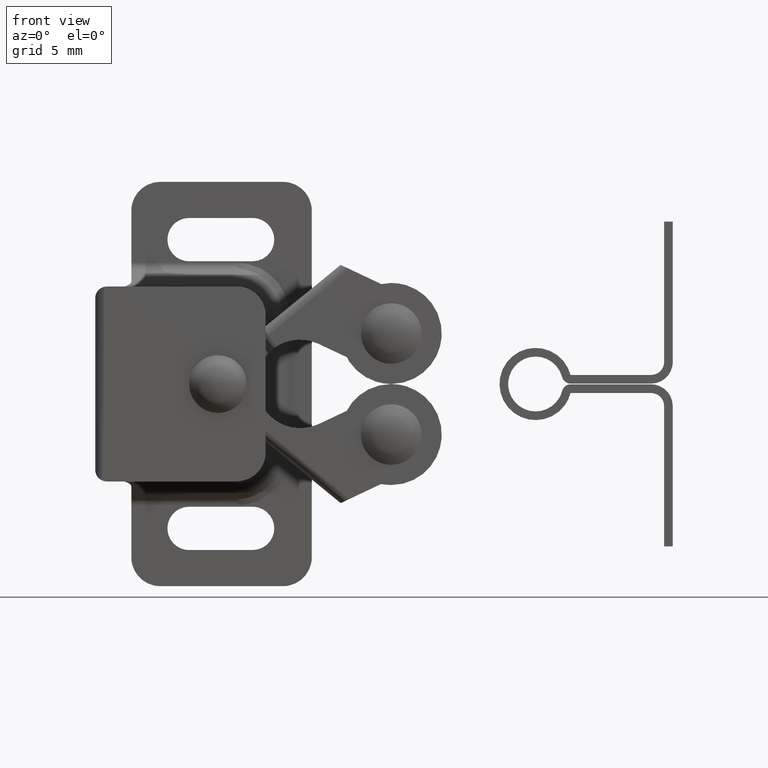
[diagram: clean part render]
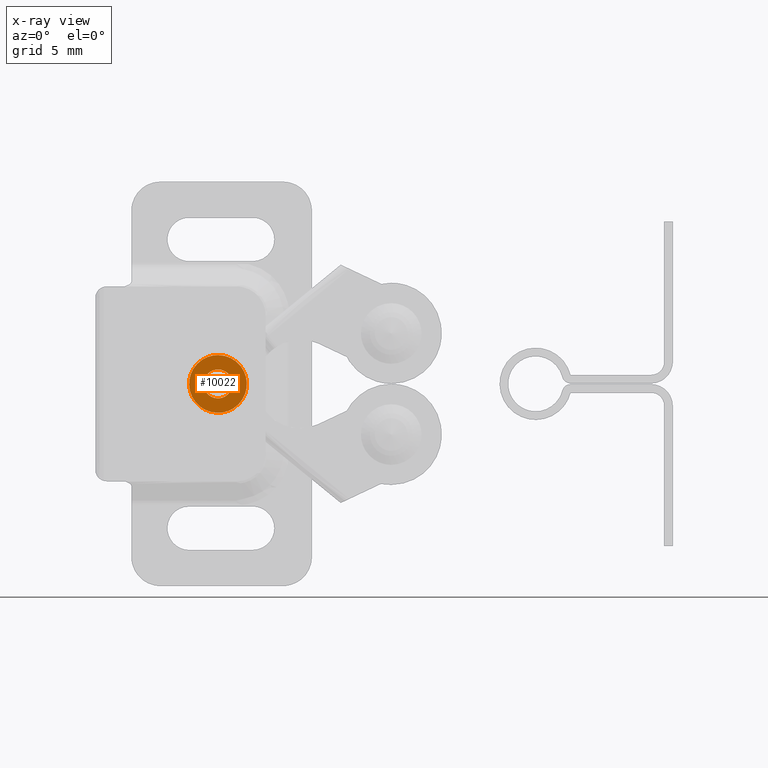
[diagram: x-ray — body ghosted, one internal face saturated and labeled with its STEP entity id]
A machine part, front view, then the same camera in x-ray: the body is ghosted and one INTERNAL B-rep face — a face not visible from any outside direction — is saturated and labeled: STEP entity #10022.
In plain terms, the highlighted face is a freeform B-spline surface patch.
Its self-contained STEP definition (entity closure, byte-faithful):
#9603=CARTESIAN_POINT('',(0.793005526357984,-12.499995999999999,-9.881965765295188));
#9604=VERTEX_POINT('',#9603);
#9605=CARTESIAN_POINT('',(-0.200003999999993,-12.499995999999999,-11.000000000000020));
#9606=VERTEX_POINT('',#9605);
#9607=CARTESIAN_POINT('',(0.793005526357984,-12.499995999999998,-9.881965765295188));
#9608=CARTESIAN_POINT('',(0.799996000000031,-12.499995999999998,-9.940775880299531));
#9609=CARTESIAN_POINT('',(0.799996000000031,-12.499995999999999,-10.0));
#9610=CARTESIAN_POINT('',(0.799996000000031,-12.499995999999999,-11.000000000000023));
#9611=CARTESIAN_POINT('',(-0.200003999999993,-12.499995999999999,-11.000000000000020));
#9619=(BOUNDED_CURVE()B_SPLINE_CURVE(2,(#9607,#9608,#9609,#9610,#9611),.UNSPECIFIED.,.F.,.U.)B_SPLINE_CURVE_WITH_KNOTS((3,2,3),(0.229562473499289,0.250000000000000,0.500000000000000),.UNSPECIFIED.)CURVE()GEOMETRIC_REPRESENTATION_ITEM()RATIONAL_B_SPLINE_CURVE((0.956026754155829,0.976055948314486,1.0,0.707106781186548,1.0))REPRESENTATION_ITEM(''));
#9620=EDGE_CURVE('',#9604,#9606,#9619,.T.);
#9622=CARTESIAN_POINT('',(-1.198138798414372,-12.499995999999999,-10.061048539657650));
#9623=VERTEX_POINT('',#9622);
#9624=CARTESIAN_POINT('',(-0.200003999999993,-12.499995999999999,-11.000000000000020));
#9625=CARTESIAN_POINT('',(-1.140710066673824,-12.499996000000001,-11.000000000000021));
#9626=CARTESIAN_POINT('',(-1.198138798414371,-12.499996000000001,-10.061048539657648));
#9634=(BOUNDED_CURVE()B_SPLINE_CURVE(2,(#9624,#9625,#9626),.UNSPECIFIED.,.F.,.U.)B_SPLINE_CURVE_WITH_KNOTS((3,3),(0.500000000000000,0.739332962199514),.UNSPECIFIED.)CURVE()GEOMETRIC_REPRESENTATION_ITEM()RATIONAL_B_SPLINE_CURVE((1.0,0.719603993332904,0.976072041582215))REPRESENTATION_ITEM(''));
#9635=EDGE_CURVE('',#9606,#9623,#9634,.T.);
#9702=CARTESIAN_POINT('',(-0.200003999999993,-12.499995999999999,-8.999999999999977));
#9703=VERTEX_POINT('',#9702);
#9704=CARTESIAN_POINT('',(-0.200003999999993,-12.499995999999999,-8.999999999999977));
#9705=CARTESIAN_POINT('',(0.688170525864838,-12.499995999999999,-8.999999999999977));
#9706=CARTESIAN_POINT('',(0.793005526357984,-12.499995999999996,-9.881965765295188));
#9714=(BOUNDED_CURVE()B_SPLINE_CURVE(2,(#9704,#9705,#9706),.UNSPECIFIED.,.F.,.U.)B_SPLINE_CURVE_WITH_KNOTS((3,3),(0.0,0.229562473499289),.UNSPECIFIED.)CURVE()GEOMETRIC_REPRESENTATION_ITEM()RATIONAL_B_SPLINE_CURVE((1.0,0.731050832872062,0.956026754155829))REPRESENTATION_ITEM(''));
#9715=EDGE_CURVE('',#9703,#9604,#9714,.T.);
#9749=CARTESIAN_POINT('',(-1.198138798414371,-12.499996000000001,-10.061048539657648));
#9750=CARTESIAN_POINT('',(-1.200004000000017,-12.499996000000003,-10.030552763421724));
#9751=CARTESIAN_POINT('',(-1.200004000000017,-12.499995999999999,-10.0));
#9752=CARTESIAN_POINT('',(-1.200004000000017,-12.499995999999999,-8.999999999999977));
#9753=CARTESIAN_POINT('',(-0.200003999999993,-12.499995999999999,-8.999999999999977));
#9761=(BOUNDED_CURVE()B_SPLINE_CURVE(2,(#9749,#9750,#9751,#9752,#9753),.UNSPECIFIED.,.F.,.U.)B_SPLINE_CURVE_WITH_KNOTS((3,2,3),(0.739332962199515,0.750000000000000,1.0),.UNSPECIFIED.)CURVE()GEOMETRIC_REPRESENTATION_ITEM()RATIONAL_B_SPLINE_CURVE((0.976072041582216,0.987502787853645,1.0,0.707106781186548,1.0))REPRESENTATION_ITEM(''));
#9762=EDGE_CURVE('',#9623,#9703,#9761,.T.);
#9975=CARTESIAN_POINT('',(-2.399804104894552,-12.499995999999999,-7.800200007752776));
#9976=CARTESIAN_POINT('',(-2.399804104894552,-12.499995999999999,-12.199800099535590));
#9977=CARTESIAN_POINT('',(1.999796104894565,-12.499995999999999,-7.800200007752776));
#9978=CARTESIAN_POINT('',(1.999796104894565,-12.499995999999999,-12.199800099535590));
#9979=B_SPLINE_SURFACE_WITH_KNOTS('',1,1,((#9975,#9977),(#9976,#9978)),.UNSPECIFIED.,.F.,.F.,.U.,(2,2),(2,2),(0.0,4.399600091782808),(0.0,4.399600209789116),.UNSPECIFIED.);
#9980=CARTESIAN_POINT('',(-0.200003999999993,-12.499995999999999,-8.0));
#9981=VERTEX_POINT('',#9980);
#9982=CARTESIAN_POINT('',(-0.200003999999993,-12.499995999999999,-12.0));
#9983=VERTEX_POINT('',#9982);
#9984=CARTESIAN_POINT('',(-0.200003999999993,-12.499995999999999,-8.0));
#9985=CARTESIAN_POINT('',(1.799996000000007,-12.499995999999999,-8.0));
#9986=CARTESIAN_POINT('',(1.799996000000007,-12.499995999999999,-10.0));
#9987=CARTESIAN_POINT('',(1.799996000000007,-12.499995999999999,-12.0));
#9988=CARTESIAN_POINT('',(-0.200003999999993,-12.499995999999999,-12.0));
#9996=(BOUNDED_CURVE()B_SPLINE_CURVE(2,(#9984,#9985,#9986,#9987,#9988),.UNSPECIFIED.,.F.,.U.)B_SPLINE_CURVE_WITH_KNOTS((3,2,3),(0.0,0.250000000000000,0.500000000000000),.UNSPECIFIED.)CURVE()GEOMETRIC_REPRESENTATION_ITEM()RATIONAL_B_SPLINE_CURVE((1.0,0.707106781186548,1.0,0.707106781186548,1.0))REPRESENTATION_ITEM(''));
#9997=EDGE_CURVE('',#9981,#9983,#9996,.T.);
#9998=ORIENTED_EDGE('',*,*,#9997,.T.);
#9999=CARTESIAN_POINT('',(-0.200003999999993,-12.499995999999999,-12.0));
#10000=CARTESIAN_POINT('',(-2.200003999999994,-12.499995999999999,-12.0));
#10001=CARTESIAN_POINT('',(-2.200003999999993,-12.499995999999999,-10.0));
#10002=CARTESIAN_POINT('',(-2.200003999999994,-12.499995999999999,-8.0));
#10003=CARTESIAN_POINT('',(-0.200003999999993,-12.499995999999999,-8.0));
#10011=(BOUNDED_CURVE()B_SPLINE_CURVE(2,(#9999,#10000,#10001,#10002,#10003),.UNSPECIFIED.,.F.,.U.)B_SPLINE_CURVE_WITH_KNOTS((3,2,3),(0.500000000000000,0.750000000000000,1.0),.UNSPECIFIED.)CURVE()GEOMETRIC_REPRESENTATION_ITEM()RATIONAL_B_SPLINE_CURVE((1.0,0.707106781186548,1.0,0.707106781186548,1.0))REPRESENTATION_ITEM(''));
#10012=EDGE_CURVE('',#9983,#9981,#10011,.T.);
#10013=ORIENTED_EDGE('',*,*,#10012,.T.);
#10014=EDGE_LOOP('',(#9998,#10013));
#10015=FACE_OUTER_BOUND('',#10014,.T.);
#10016=ORIENTED_EDGE('',*,*,#9635,.F.);
#10017=ORIENTED_EDGE('',*,*,#9620,.F.);
#10018=ORIENTED_EDGE('',*,*,#9715,.F.);
#10019=ORIENTED_EDGE('',*,*,#9762,.F.);
#10020=EDGE_LOOP('',(#10016,#10017,#10018,#10019));
#10021=FACE_BOUND('',#10020,.T.);
#10022=ADVANCED_FACE('',(#10015,#10021),#9979,.F.);